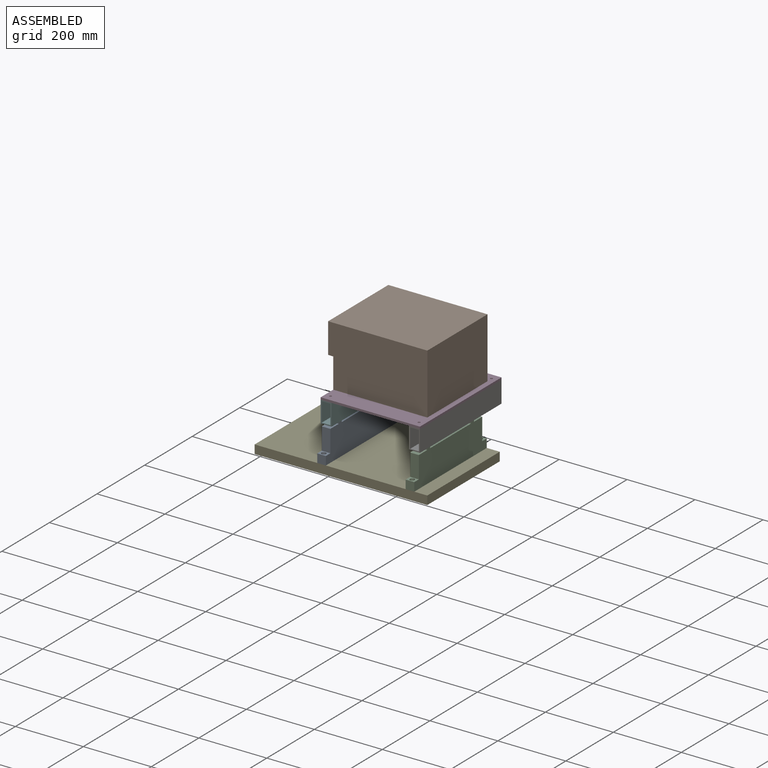
[diagram: assembled view]
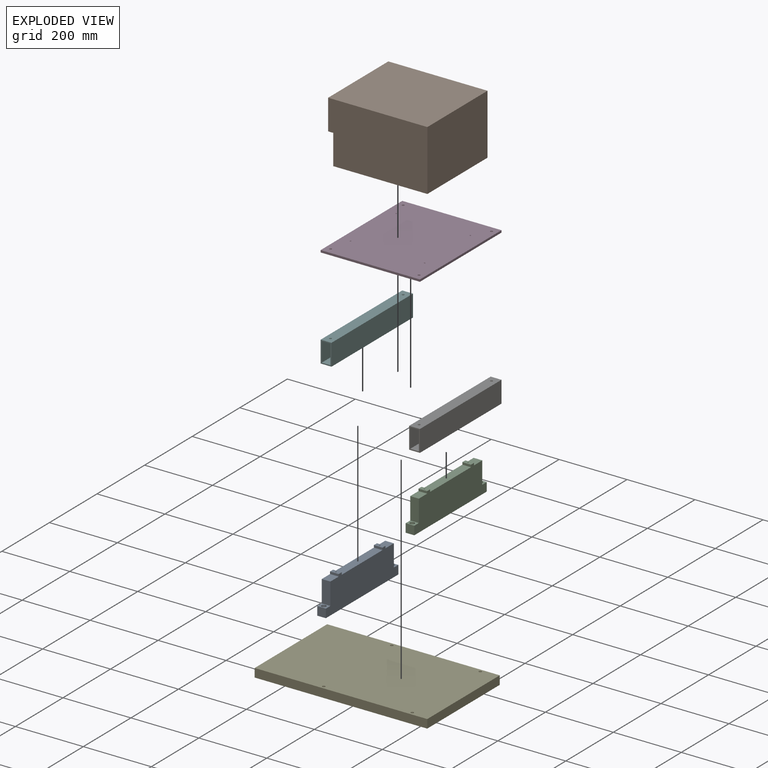
[diagram: exploded view]
GUIDED TOUR — MATED ASSEMBLY (Onshape document 7dd33d00892beebd2c6f414e, AutoMate assembly 7dd33d00892beebd2c6f414e_c214f4509503139859680bf2_5ff66dabe792dec4375b28dd_default)

This assembly has 7 components, labeled P0..P6 below (a component is one placed occurrence of a part; the same part can appear more than once), held together by 19 mates. A mate is a constraint between two components; its type names the relative motion it leaves free:
  CYLINDRICAL — leaves both rotation about and translation along the listed axis free,
  PLANAR — leaves sliding in the plane through the listed point (normal = the listed direction) and rotation about that normal free.
Axis/direction vectors are unit vectors and 'through' points are millimeter coordinates, both in the assembly's world frame.

MATES
  1. CYLINDRICAL "Cylindrical 4": P2 <-> P4, axis (0.000, 0.000, 1.000) through (-16.87, -250.00, 259.79) mm
  2. CYLINDRICAL "Cylindrical 12": P3 <-> P5, axis (0.000, 0.000, -1.000) through (-277.22, 83.37, 394.72) mm
  3. CYLINDRICAL "Cylindrical 3": P2 <-> P4, axis (0.000, 0.000, 1.000) through (-16.87, 35.75, 259.79) mm
  4. CYLINDRICAL "Cylindrical 7": P2 <-> P6, axis (0.000, 0.000, 1.000) through (-16.87, -199.20, 331.22) mm
  5. CYLINDRICAL "Cylindrical 1": P4 <-> P0, axis (0.000, 0.000, -1.000) through (-277.22, -250.00, 221.69) mm
  6. PLANAR "Planar 1": P0 <-> P4, direction (0.000, 0.000, -1.000) through (-277.22, -107.08, 234.39) mm
  7. CYLINDRICAL "Cylindrical 5": P5 <-> P0, axis (0.000, 0.000, -1.000) through (-277.22, -15.05, 331.22) mm
  8. CYLINDRICAL "Cylindrical 10": P5 <-> P3, axis (0.000, 0.000, 1.000) through (-277.22, -221.43, 394.72) mm
  9. PLANAR "Planar 5": P3 <-> P5, direction (0.000, 0.000, -1.000) through (-0.99, -69.03, 394.72) mm
  10. PLANAR "Planar 7": P3 <-> P5, direction (0.000, 0.000, -1.000) through (-147.03, -69.04, 394.72) mm
  11. CYLINDRICAL "Cylindrical 11": P1 <-> P3, axis (0.000, 0.000, -1.000) through (-263.60, -157.12, 401.07) mm
  12. CYLINDRICAL "Cylindrical 6": P5 <-> P0, axis (0.000, 0.000, -1.000) through (-277.22, -199.20, 331.22) mm
  13. PLANAR "Planar 3": P5 <-> P0, direction (0.000, 0.000, -1.000) through (-277.22, -68.95, 331.22) mm
  14. CYLINDRICAL "Cylindrical 8": P6 <-> P2, axis (0.000, 0.000, -1.000) through (-16.87, -15.05, 331.22) mm
  15. PLANAR "Planar 6": P1 <-> P3, direction (0.000, 0.000, -1.000) through (-154.59, -61.12, 401.07) mm
  16. PLANAR "Planar 4": P6 <-> P2, direction (0.000, 0.000, -1.000) through (-16.87, -68.95, 331.22) mm
  17. PLANAR "Planar 2": P2 <-> P4, direction (0.000, 0.000, -1.000) through (-16.87, -107.08, 234.39) mm
  18. CYLINDRICAL "Cylindrical 9": P1 <-> P3, axis (0.000, 0.000, -1.000) through (-263.60, 34.88, 401.07) mm
  19. CYLINDRICAL "Cylindrical 2": P4 <-> P0, axis (0.000, 0.000, 1.000) through (-277.22, 35.75, 234.39) mm

ASSEMBLY ORDER
  1. P6 — the base component [order verified]
  2. P5 [order verified]
  3. P3 [order verified]
  4. P2 [order verified]
  5. P0 [order verified]
  6. P1 [order verified]
  7. P4 [order verified]
Order-tag legend:
  [order verified] — this step's position reverses a verified removal order: the component was checked to insert without passing through the ones already placed.

Of the 7 components, 7 carry the full construction recipe — the FeatureScript program that regenerates the part's solid from scratch; the rest are supplied as boundary geometry only.
Each toured component is shown spotlighted twice — in the assembled view, then in the exploded view, where a leader line traces a displaced component back to its assembled socket (saturated green if recipe-attached, orange if geometry-only; every other component desaturated gray) — followed by its recipe or geometry summary and the mates that hold it.
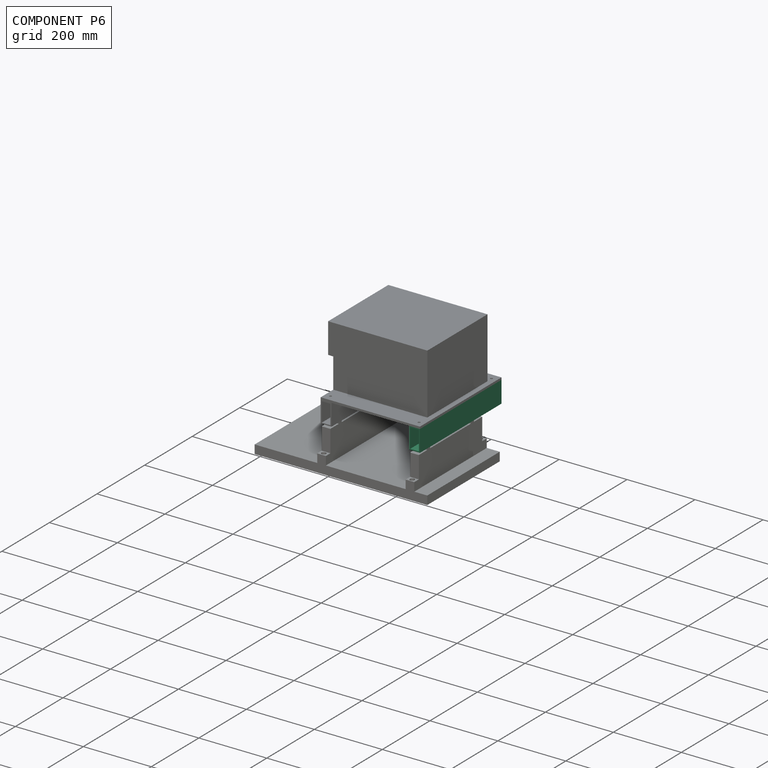
[diagram: component P6 — assembled]
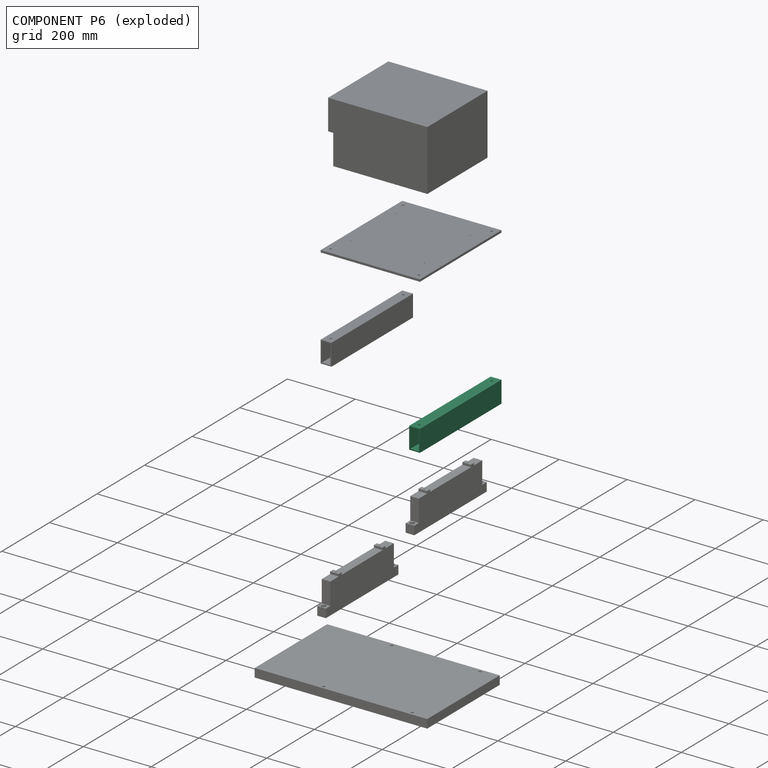
[diagram: component P6 — exploded]
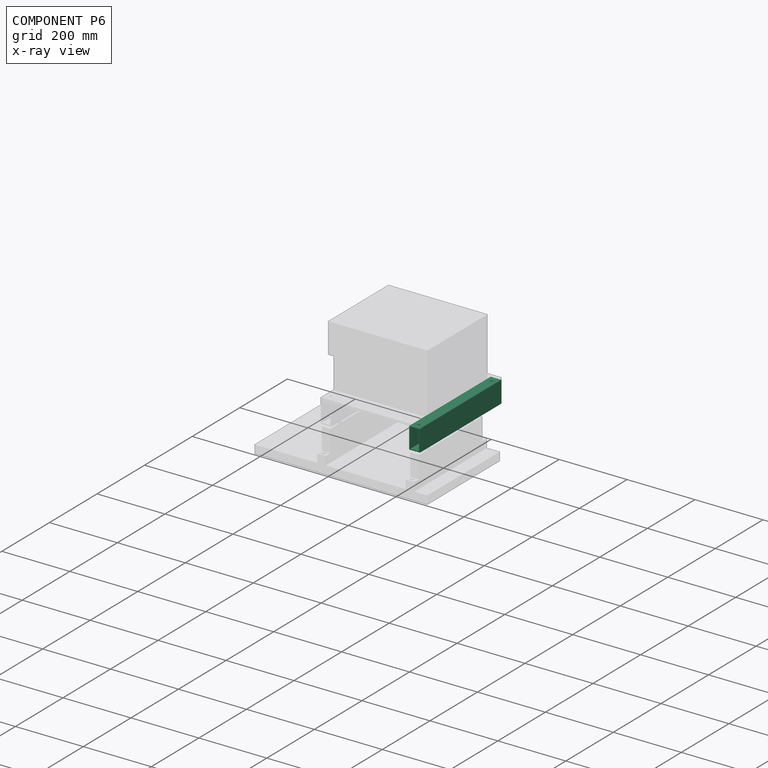
[diagram: component P6 — x-ray view]
COMPONENT P6 — same part as P5 (CADFS 00154562); its construction recipe is shown at P5.
Held by: CYLINDRICAL mate "Cylindrical 7" to P2; CYLINDRICAL mate "Cylindrical 8" to P2; PLANAR mate "Planar 4" to P2.
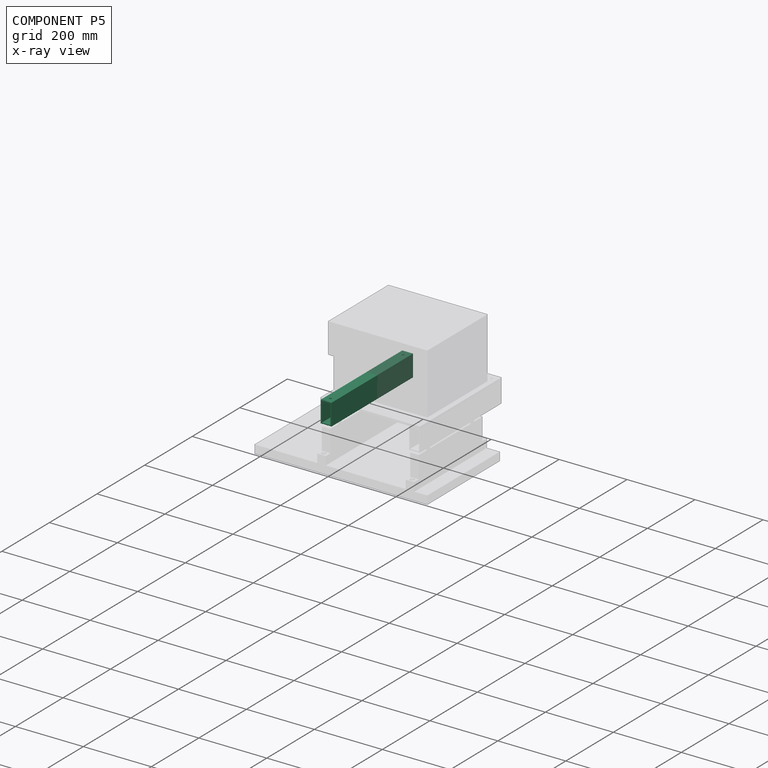
[diagram: component P5 — x-ray view]
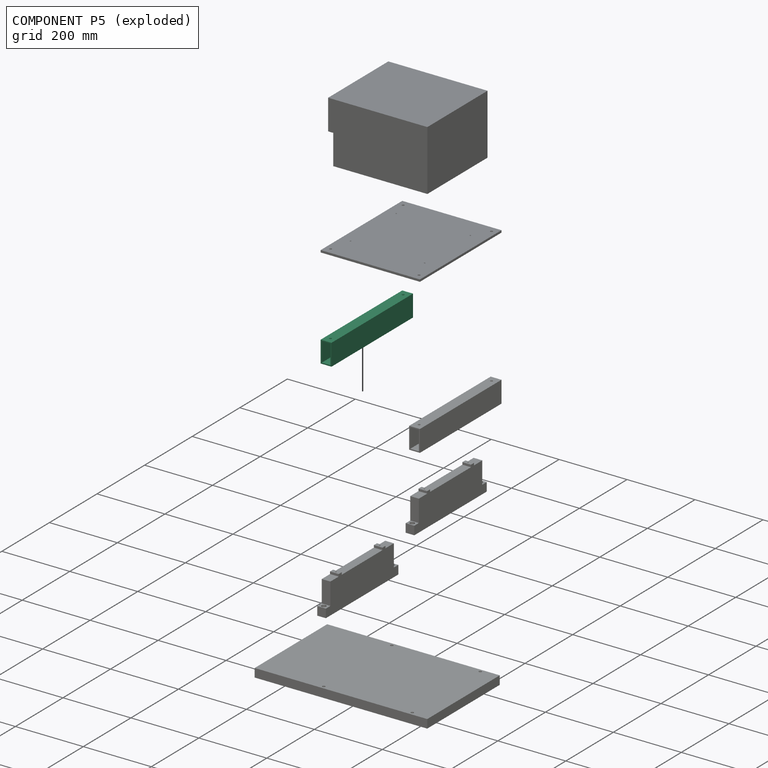
[diagram: component P5 — exploded]
COMPONENT P5 — recipe-attached (CADFS 00154562, mesh-verified: the recipe's output STEP matches this component's geometry to below the mesh-comparison resolution (tessellation chordal tolerance ~0.525 mm)).
Held by: CYLINDRICAL mate "Cylindrical 12" to P3; CYLINDRICAL mate "Cylindrical 5" to P0; CYLINDRICAL mate "Cylindrical 10" to P3; PLANAR mate "Planar 5" to P3; PLANAR mate "Planar 7" to P3; CYLINDRICAL mate "Cylindrical 6" to P0; PLANAR mate "Planar 3" to P0.
Construction recipe (FeatureScript — the CAD program that rebuilds this solid; sketch coordinates are in the units given by the * unit suffixes, e.g. mm):

FeatureScript 1511;
import(path : "onshape/std/geometry.fs", version : "1511.0");
import(path : "onshape/std/common.fs", version : "1511.0");
const mm = millimeter;
const VERTEX = EntityType.VERTEX;
const EDGE = EntityType.EDGE;
const FACE = EntityType.FACE;
const BODY = EntityType.BODY;
function v(x, y){return vector(x, y);}
function OD(order){return orderDisambiguation(order);}
function OSD(set){return originalSetDisambiguation(set);}
function TD(topology){return topologyDisambiguation(topology);}
function TDD(query){return trueDependencyDisambiguation(query);}
function sQuery(a, b, c) {return sketchEntityQuery(a, b, c);}

annotation { "Feature Type Name" : "Feature", "Feature Type Description" : "" }
export const myFeature = defineFeature(function(context is Context, id is Id, definition is map)
    precondition{}
    {
        {
            var Q0;
            Q0=qCreatedBy(makeId("Right.planeOp"),FACE);
            var sketch = newSketch(context, id + "F0", { "sketchPlane" : qUnion([Q0])});
            skLineSegment(sketch, "E0.bottom", {"start": v(-15.87, 31.75) * mm, "end": v(15.88, 31.75) * mm});
            skLineSegment(sketch, "E0.top", {"start": v(-15.88, -31.75) * mm, "end": v(15.88, -31.75) * mm});
            skLineSegment(sketch, "E0.left", {"start": v(-15.87, 31.75) * mm, "end": v(-15.88, -31.75) * mm});
            skLineSegment(sketch, "E0.right", {"start": v(15.88, 31.75) * mm, "end": v(15.87, -31.75) * mm});
            skLineSegment(sketch, "E1.bottom", {"start": v(-12.7, 28.58) * mm, "end": v(12.7, 28.58) * mm});
            skLineSegment(sketch, "E1.top", {"start": v(-12.7, -28.58) * mm, "end": v(12.7, -28.58) * mm});
            skLineSegment(sketch, "E1.left", {"start": v(-12.7, 28.58) * mm, "end": v(-12.7, -28.58) * mm});
            skLineSegment(sketch, "E1.right", {"start": v(12.7, 28.58) * mm, "end": v(12.7, -28.58) * mm});
            skLineSegment(sketch, "E2", {"start": v(-12.7, 28.58) * mm, "end": v(12.7, -28.57) * mm, "construction": true});
            skSolve(sketch);
        }
        {
            var Q0;
            Q0=makeQuery(id+"F0.imprint","IMPRINT",FACE,{"disambiguationData":[TD([[makeQuery(id+"F0.imprint","IMPRINT",EDGE,{"derivedFrom":sQuery(id+"F0.wireOp",EDGE,"E0.bottom")}),-1.0]])]});
            extrude(context, id + "F1", {"entities" : qUnion([Q0]), "depth" : 342.9 * mm});
        }
        {
            var Q0;
            Q0=makeQuery(id+"F1.opExtrude","SWEPT_FACE",FACE,{"disambiguationData":[OSD([sQuery(id+"F0.wireOp",EDGE,"E0.top")])]});
            var sketch = newSketch(context, id + "F2", { "sketchPlane" : qUnion([Q0])});
            skLineSegment(sketch, "E3", {"start": v(0, 0) * mm, "end": v(342.9, 0) * mm, "construction": true});
            skLineSegment(sketch, "E4", {"start": v(117.48, 15.88) * mm, "end": v(117.48, -15.87) * mm, "construction": true});
            skLineSegment(sketch, "E5", {"start": v(301.63, 15.88) * mm, "end": v(301.63, -15.87) * mm, "construction": true});
            skCircle(sketch, "E6", {"center": v(117.48, 0) * mm, "radius": 1.9 * mm});
            skCircle(sketch, "E7", {"center": v(301.63, 0) * mm, "radius": 1.9 * mm});
            skSolve(sketch);
        }
        {
            var Q0;
            Q0=makeQuery(id+"F2.imprint","IMPRINT",FACE,{"disambiguationData":[TD([[makeQuery(id+"F2.imprint","IMPRINT",EDGE,{"derivedFrom":sQuery(id+"F2.wireOp",EDGE,"E6")}),1.0]])]});
            var Q1;
            Q1=makeQuery(id+"F2.imprint","IMPRINT",FACE,{"disambiguationData":[TD([[makeQuery(id+"F2.imprint","IMPRINT",EDGE,{"derivedFrom":sQuery(id+"F2.wireOp",EDGE,"E7")}),1.0]])]});
            extrude(context, id + "F3", {"entities" : qUnion([Q0, Q1]), "operationType" : NewBodyOperationType.REMOVE, "endBound" : BoundingType.UP_TO_NEXT, "oppositeDirection" : true, "depth" : 25.4 * mm});
        }
        {
            var Q0;
            Q0=makeQuery(id+"F1.opExtrude","SWEPT_FACE",FACE,{"disambiguationData":[OSD([sQuery(id+"F0.wireOp",EDGE,"E0.bottom")])]});
            var sketch = newSketch(context, id + "F4", { "sketchPlane" : qUnion([Q0])});
            skLineSegment(sketch, "E8", {"start": v(0, 0) * mm, "end": v(342.9, 0) * mm, "construction": true});
            skLineSegment(sketch, "E9", {"start": v(19.05, 15.88) * mm, "end": v(19.05, -15.87) * mm, "construction": true});
            skLineSegment(sketch, "E10", {"start": v(323.85, 15.88) * mm, "end": v(323.85, -15.87) * mm, "construction": true});
            skCircle(sketch, "E11", {"center": v(19.05, 0) * mm, "radius": 3.38 * mm});
            skCircle(sketch, "E12", {"center": v(323.85, 0) * mm, "radius": 3.38 * mm});
            skSolve(sketch);
        }
        {
            var Q0;
            Q0=makeQuery(id+"F4.imprint","IMPRINT",FACE,{"disambiguationData":[TD([[makeQuery(id+"F4.imprint","IMPRINT",EDGE,{"derivedFrom":sQuery(id+"F4.wireOp",EDGE,"E11")}),1.0]])]});
            var Q1;
            Q1=makeQuery(id+"F4.imprint","IMPRINT",FACE,{"disambiguationData":[TD([[makeQuery(id+"F4.imprint","IMPRINT",EDGE,{"derivedFrom":sQuery(id+"F4.wireOp",EDGE,"E12")}),1.0]])]});
            extrude(context, id + "F5", {"entities" : qUnion([Q0, Q1]), "operationType" : NewBodyOperationType.REMOVE, "endBound" : BoundingType.UP_TO_NEXT, "oppositeDirection" : true, "depth" : 25.4 * mm});
        }
    });
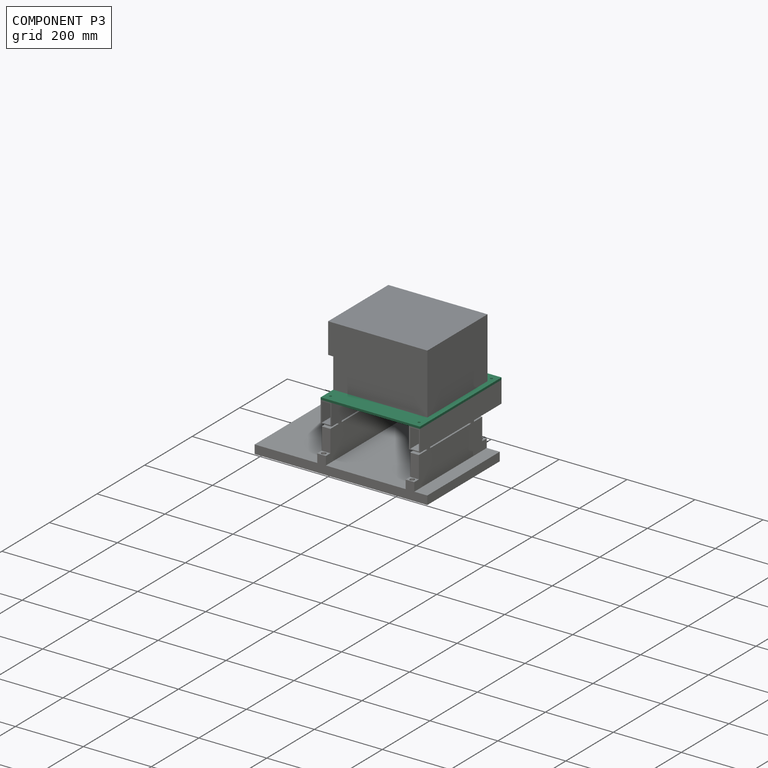
[diagram: component P3 — assembled]
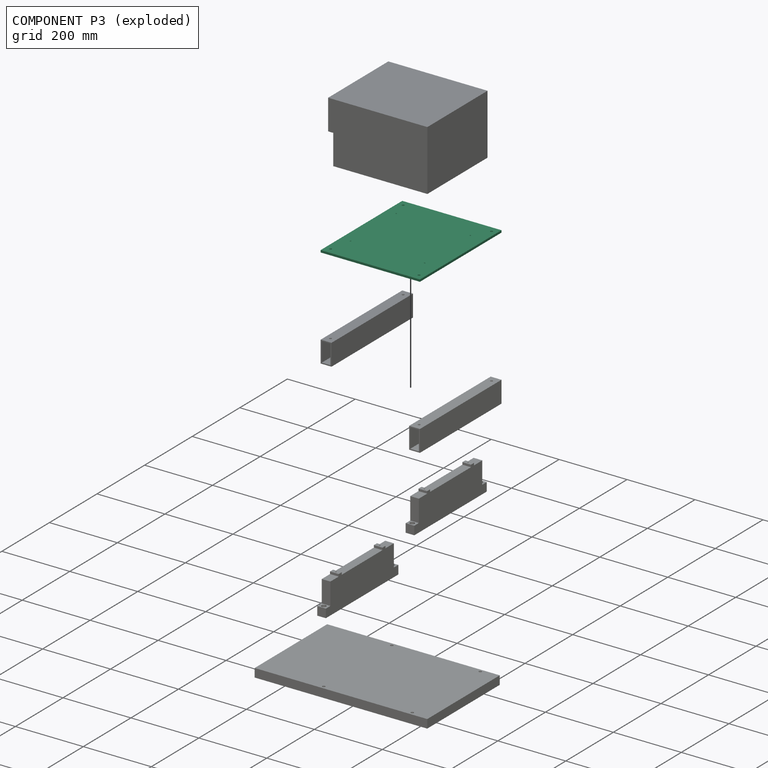
[diagram: component P3 — exploded]
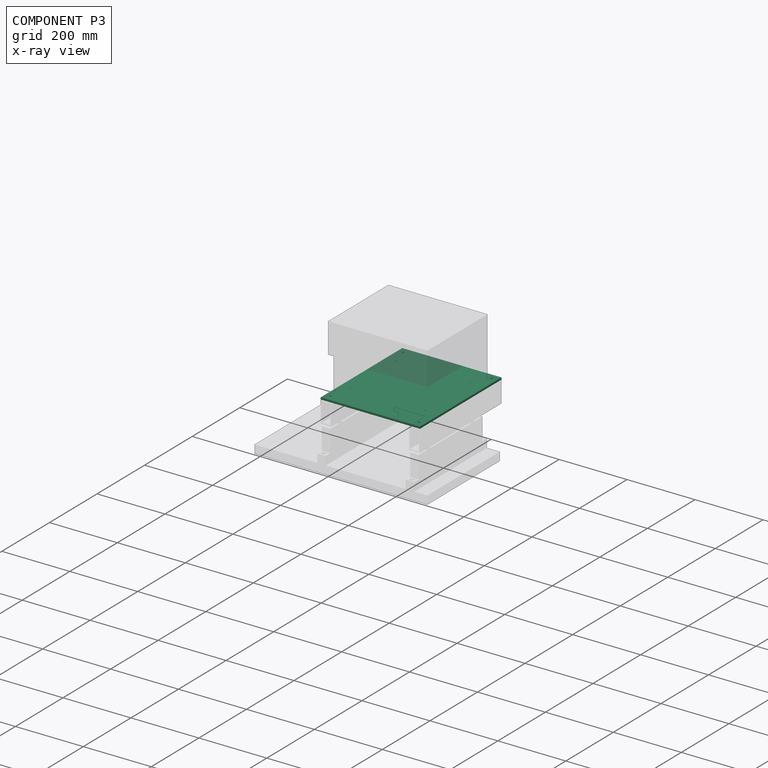
[diagram: component P3 — x-ray view]
COMPONENT P3 — recipe-attached (CADFS 00154571, mesh-verified: the recipe's output STEP matches this component's geometry to below the mesh-comparison resolution (tessellation chordal tolerance ~0.676 mm)).
Held by: CYLINDRICAL mate "Cylindrical 12" to P5; CYLINDRICAL mate "Cylindrical 10" to P5; PLANAR mate "Planar 5" to P5; PLANAR mate "Planar 7" to P5; CYLINDRICAL mate "Cylindrical 11" to P1; PLANAR mate "Planar 6" to P1; CYLINDRICAL mate "Cylindrical 9" to P1.
Construction recipe (FeatureScript — the CAD program that rebuilds this solid; sketch coordinates are in the units given by the * unit suffixes, e.g. mm):

FeatureScript 1511;
import(path : "onshape/std/geometry.fs", version : "1511.0");
import(path : "onshape/std/common.fs", version : "1511.0");
const mm = millimeter;
const VERTEX = EntityType.VERTEX;
const EDGE = EntityType.EDGE;
const FACE = EntityType.FACE;
const BODY = EntityType.BODY;
function v(x, y){return vector(x, y);}
function OD(order){return orderDisambiguation(order);}
function OSD(set){return originalSetDisambiguation(set);}
function TD(topology){return topologyDisambiguation(topology);}
function TDD(query){return trueDependencyDisambiguation(query);}
function sQuery(a, b, c) {return sketchEntityQuery(a, b, c);}

annotation { "Feature Type Name" : "Feature", "Feature Type Description" : "" }
export const myFeature = defineFeature(function(context is Context, id is Id, definition is map)
    precondition{}
    {
        {
            var Q0;
            Q0=qCreatedBy(makeId("Top.planeOp"),FACE);
            var sketch = newSketch(context, id + "F0", { "sketchPlane" : qUnion([Q0])});
            skLineSegment(sketch, "E0.bottom", {"start": v(-171.45, 146.05) * mm, "end": v(171.45, 146.05) * mm});
            skLineSegment(sketch, "E0.top", {"start": v(-171.45, -146.05) * mm, "end": v(171.45, -146.05) * mm});
            skLineSegment(sketch, "E0.left", {"start": v(-171.45, 146.05) * mm, "end": v(-171.45, -146.05) * mm});
            skLineSegment(sketch, "E0.right", {"start": v(171.45, 146.05) * mm, "end": v(171.45, -146.05) * mm});
            skLineSegment(sketch, "E1", {"start": v(-171.45, 146.05) * mm, "end": v(171.45, -146.05) * mm, "construction": true});
            skSolve(sketch);
        }
        {
            var Q0;
            Q0=makeQuery(id+"F0.imprint","IMPRINT",FACE,{"disambiguationData":[TD([[makeQuery(id+"F0.imprint","IMPRINT",EDGE,{"derivedFrom":sQuery(id+"F0.wireOp",EDGE,"E0.bottom")}),-1.0]])]});
            extrude(context, id + "F1", {"entities" : qUnion([Q0]), "depth" : 6.35 * mm});
        }
        {
            var Q0;
            Q0=makeQuery(id+"F1.opExtrude","CAP_FACE",FACE,{"disambiguationData":[OSD([sQuery(id+"F0.wireOp",EDGE,"E0.bottom"),sQuery(id+"F0.wireOp",EDGE,"E0.top"),sQuery(id+"F0.wireOp",EDGE,"E0.left"),sQuery(id+"F0.wireOp",EDGE,"E0.right")])],"isStart":false});
            var sketch = newSketch(context, id + "F2", { "sketchPlane" : qUnion([Q0])});
            skLineSegment(sketch, "E2", {"start": v(-152.4, 146.05) * mm, "end": v(-152.4, -146.05) * mm, "construction": true});
            skLineSegment(sketch, "E3", {"start": v(152.4, 146.05) * mm, "end": v(152.4, -146.05) * mm, "construction": true});
            skLineSegment(sketch, "E4", {"start": v(171.45, 130.17) * mm, "end": v(-171.45, 130.17) * mm, "construction": true});
            skLineSegment(sketch, "E5", {"start": v(171.45, -130.18) * mm, "end": v(-171.45, -130.18) * mm, "construction": true});
            skCircle(sketch, "E6", {"center": v(-152.4, 130.17) * mm, "radius": 3.38 * mm});
            skCircle(sketch, "E7", {"center": v(152.4, 130.18) * mm, "radius": 3.38 * mm});
            skCircle(sketch, "E8", {"center": v(-152.4, -130.18) * mm, "radius": 3.38 * mm});
            skCircle(sketch, "E9", {"center": v(152.4, -130.18) * mm, "radius": 3.38 * mm});
            skSolve(sketch);
        }
        {
            var Q0;
            Q0=makeQuery(id+"F2.imprint","IMPRINT",FACE,{"disambiguationData":[TD([[makeQuery(id+"F2.imprint","IMPRINT",EDGE,{"derivedFrom":sQuery(id+"F2.wireOp",EDGE,"E6")}),1.0]])]});
            var Q1;
            Q1=makeQuery(id+"F2.imprint","IMPRINT",FACE,{"disambiguationData":[TD([[makeQuery(id+"F2.imprint","IMPRINT",EDGE,{"derivedFrom":sQuery(id+"F2.wireOp",EDGE,"E7")}),1.0]])]});
            var Q2;
            Q2=makeQuery(id+"F2.imprint","IMPRINT",FACE,{"disambiguationData":[TD([[makeQuery(id+"F2.imprint","IMPRINT",EDGE,{"derivedFrom":sQuery(id+"F2.wireOp",EDGE,"E9")}),1.0]])]});
            var Q3;
            Q3=makeQuery(id+"F2.imprint","IMPRINT",FACE,{"disambiguationData":[TD([[makeQuery(id+"F2.imprint","IMPRINT",EDGE,{"derivedFrom":sQuery(id+"F2.wireOp",EDGE,"E8")}),1.0]])]});
            extrude(context, id + "F3", {"entities" : qUnion([Q0, Q1, Q2, Q3]), "operationType" : NewBodyOperationType.REMOVE, "endBound" : BoundingType.THROUGH_ALL, "oppositeDirection" : true, "depth" : 25.4 * mm});
        }
        {
            var Q0;
            Q0=makeQuery(id+"F1.opExtrude","CAP_FACE",FACE,{"disambiguationData":[OSD([sQuery(id+"F0.wireOp",EDGE,"E0.bottom"),sQuery(id+"F0.wireOp",EDGE,"E0.top"),sQuery(id+"F0.wireOp",EDGE,"E0.left"),sQuery(id+"F0.wireOp",EDGE,"E0.right")])],"isStart":true});
            var sketch = newSketch(context, id + "F4", { "sketchPlane" : qUnion([Q0])});
            skLineSegment(sketch, "E10", {"start": v(-171.45, 116.56) * mm, "end": v(171.45, 116.56) * mm, "construction": true});
            skLineSegment(sketch, "E11", {"start": v(-171.45, -101.45) * mm, "end": v(171.45, -101.45) * mm, "construction": true});
            skLineSegment(sketch, "E12", {"start": v(-103.91, 146.05) * mm, "end": v(-103.91, -146.05) * mm, "construction": true});
            skLineSegment(sketch, "E13", {"start": v(88.09, 146.05) * mm, "end": v(88.09, -146.05) * mm, "construction": true});
            skPoint(sketch, "E14", {"position": v(-103.91, 116.56) * mm});
            skPoint(sketch, "E15", {"position": v(88.09, 116.56) * mm});
            skPoint(sketch, "E16", {"position": v(88.09, -101.45) * mm});
            skPoint(sketch, "E17", {"position": v(-103.91, -101.45) * mm});
            skSolve(sketch);
        }
        {
            var Q0;
            Q0=sQuery(id+"F4.wireOp",VERTEX,"E14");
            var Q1;
            Q1=sQuery(id+"F4.wireOp",VERTEX,"E15");
            var Q2;
            Q2=sQuery(id+"F4.wireOp",VERTEX,"E16");
            var Q3;
            Q3=sQuery(id+"F4.wireOp",VERTEX,"E17");
            var Q4;
            Q4=makeQuery(id+"F1.opExtrude","SWEPT_BODY",BODY,{"disambiguationData":[OSD([sQuery(id+"F0.wireOp",EDGE,"E0.bottom"),sQuery(id+"F0.wireOp",EDGE,"E0.top"),sQuery(id+"F0.wireOp",EDGE,"E0.left"),sQuery(id+"F0.wireOp",EDGE,"E0.right")])]});
            hole(context, id + "F5", {"style" : HoleStyle.C_SINK, "endStyle" : HoleEndStyle.THROUGH, "standardTappedOrClearance" : lookupTablePath({ "standard" : "ANSI", "fit" : "Normal (ASME)", "size" : "#6", "type" : "Clearance" }), "standardBlindInLast" : lookupTablePath({ "fit" : "Free", "standard" : "ANSI", "size" : "#6", "type" : "Clearance" }), "holeDiameter" : 3.8 * mm, "cSinkDiameter" : 7.8 * mm, "cSinkAngle" : 82 * degree, "locations" : qUnion([Q0, Q1, Q2, Q3]), "scope" : qUnion([Q4]), "isTappedThrough" : true});
        }
    });
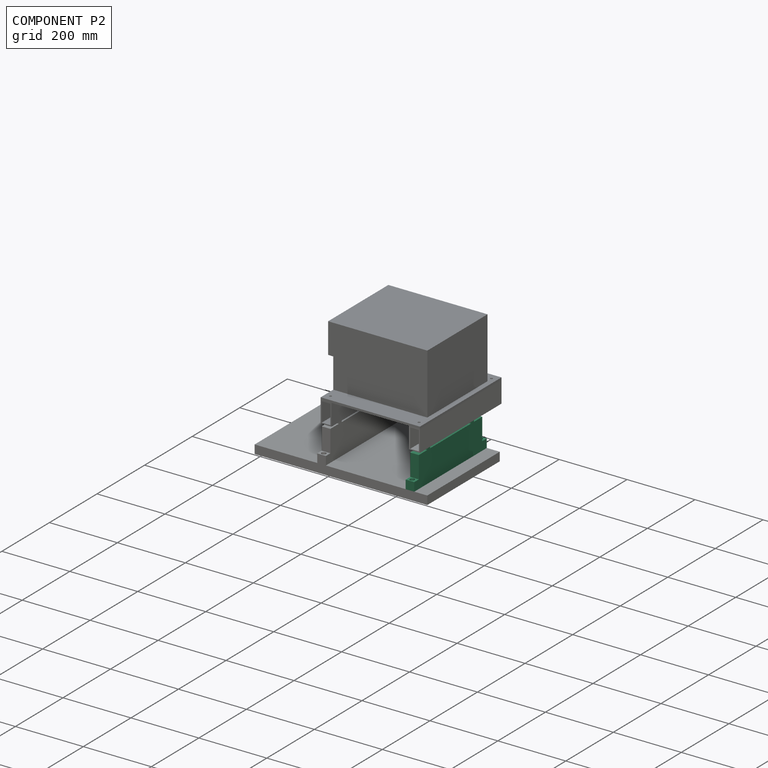
[diagram: component P2 — assembled]
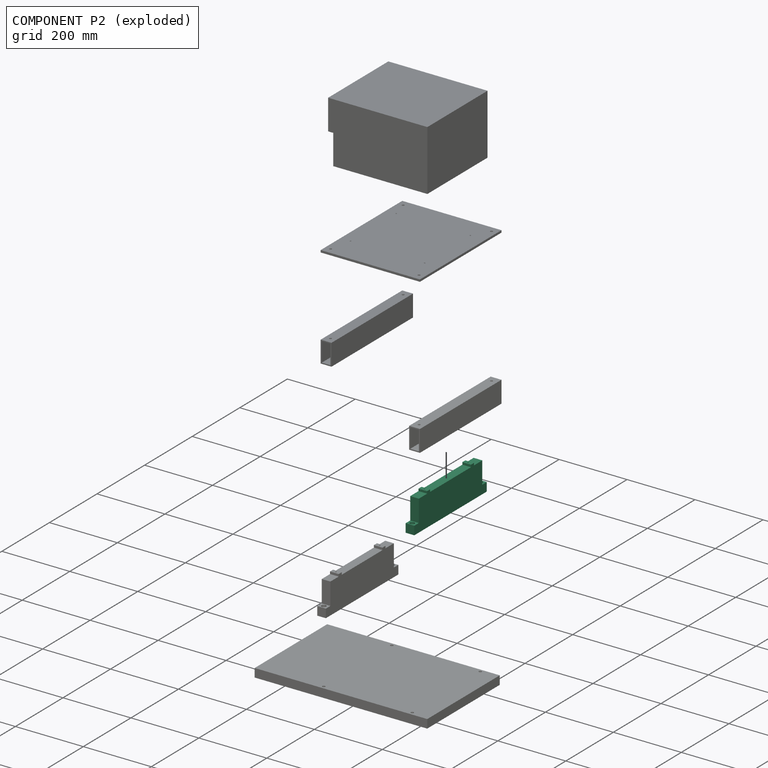
[diagram: component P2 — exploded]
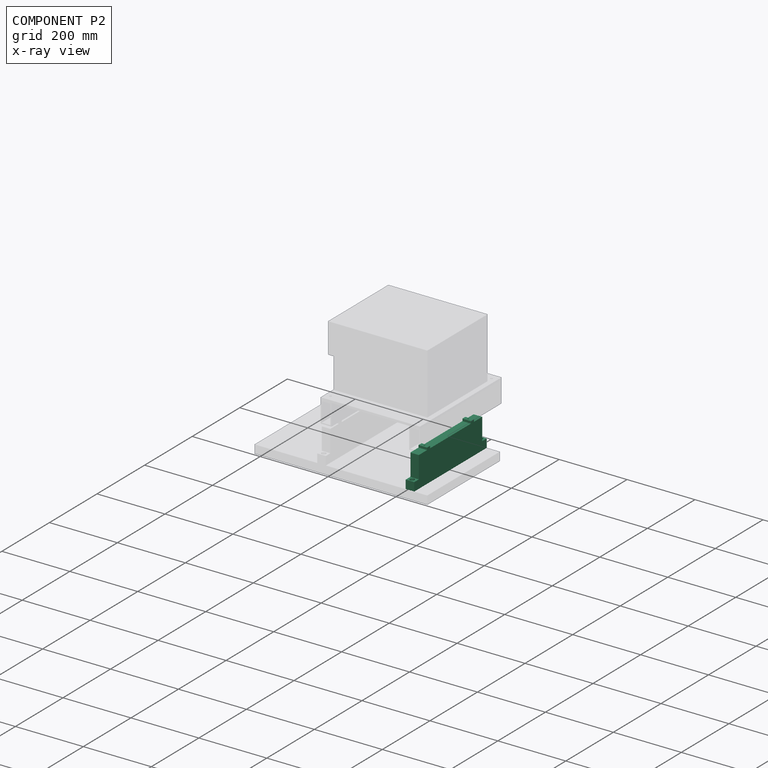
[diagram: component P2 — x-ray view]
COMPONENT P2 — same part as P0 (CADFS 00154284); its construction recipe is shown at P0.
Held by: CYLINDRICAL mate "Cylindrical 4" to P4; CYLINDRICAL mate "Cylindrical 3" to P4; CYLINDRICAL mate "Cylindrical 7" to P6; CYLINDRICAL mate "Cylindrical 8" to P6; PLANAR mate "Planar 4" to P6; PLANAR mate "Planar 2" to P4.
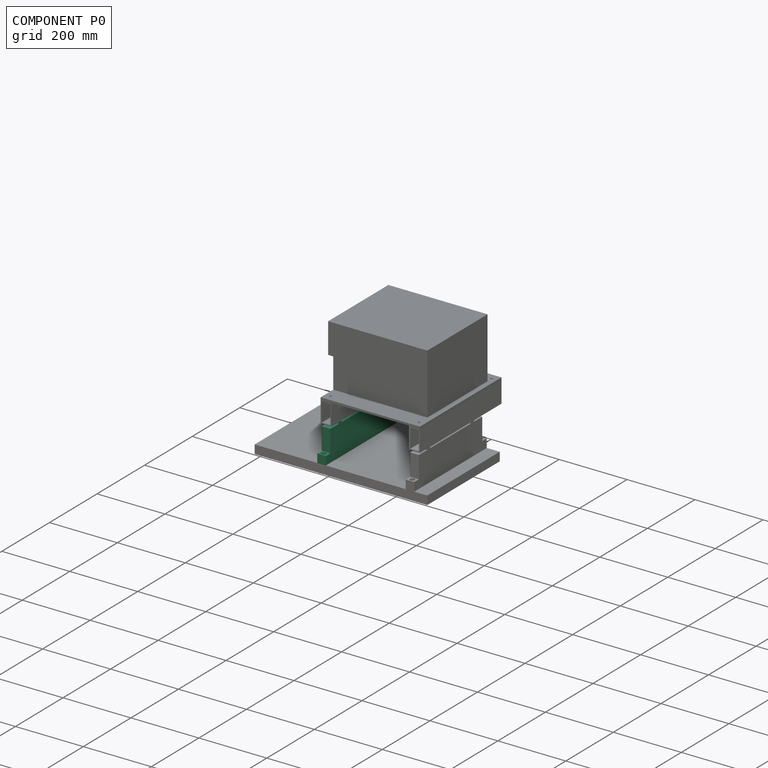
[diagram: component P0 — assembled]
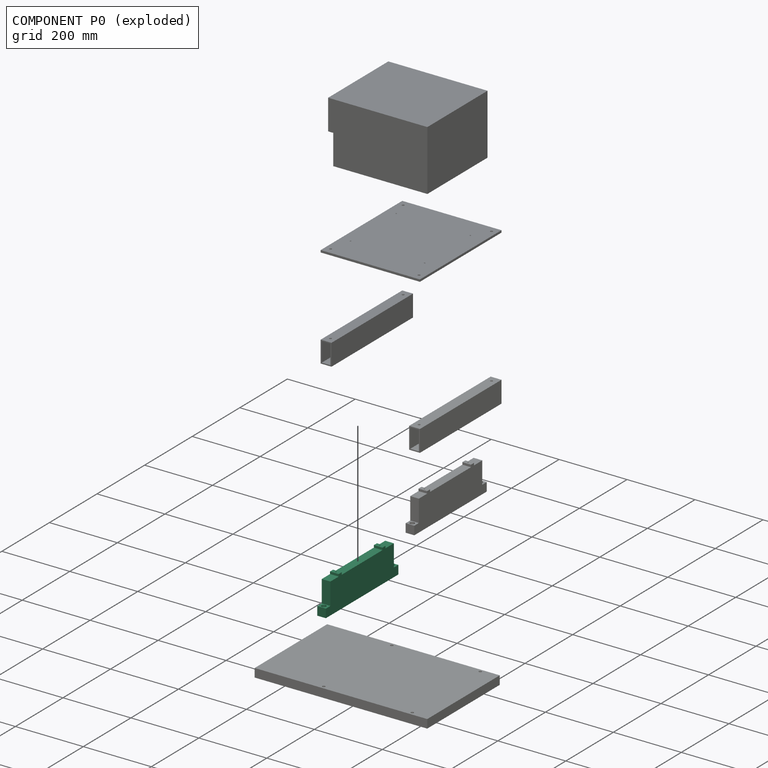
[diagram: component P0 — exploded]
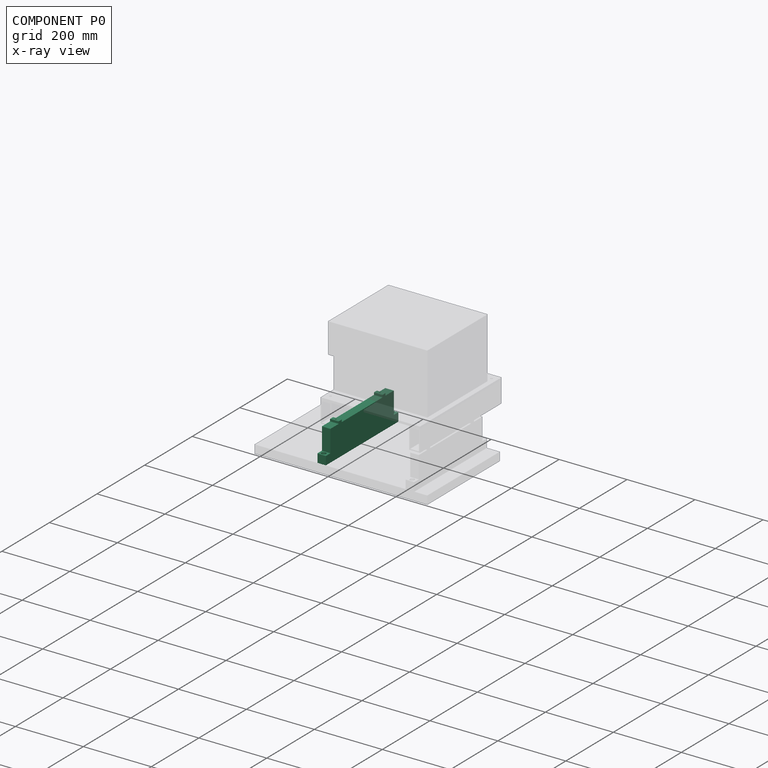
[diagram: component P0 — x-ray view]
COMPONENT P0 — recipe-attached (CADFS 00154284, mesh-verified: the recipe's output STEP matches this component's geometry to below the mesh-comparison resolution (tessellation chordal tolerance ~0.481 mm)).
Held by: CYLINDRICAL mate "Cylindrical 1" to P4; PLANAR mate "Planar 1" to P4; CYLINDRICAL mate "Cylindrical 5" to P5; CYLINDRICAL mate "Cylindrical 6" to P5; PLANAR mate "Planar 3" to P5; CYLINDRICAL mate "Cylindrical 2" to P4.
Construction recipe (FeatureScript — the CAD program that rebuilds this solid; sketch coordinates are in the units given by the * unit suffixes, e.g. mm):

FeatureScript 1511;
import(path : "onshape/std/geometry.fs", version : "1511.0");
import(path : "onshape/std/common.fs", version : "1511.0");
const mm = millimeter;
const VERTEX = EntityType.VERTEX;
const EDGE = EntityType.EDGE;
const FACE = EntityType.FACE;
const BODY = EntityType.BODY;
function v(x, y){return vector(x, y);}
function OD(order){return orderDisambiguation(order);}
function OSD(set){return originalSetDisambiguation(set);}
function TD(topology){return topologyDisambiguation(topology);}
function TDD(query){return trueDependencyDisambiguation(query);}
function sQuery(a, b, c) {return sketchEntityQuery(a, b, c);}

annotation { "Feature Type Name" : "Feature", "Feature Type Description" : "" }
export const myFeature = defineFeature(function(context is Context, id is Id, definition is map)
    precondition{}
    {
        {
            var Q0;
            Q0=qCreatedBy(makeId("Top.planeOp"),FACE);
            var sketch = newSketch(context, id + "F0", { "sketchPlane" : qUnion([Q0])});
            skLineSegment(sketch, "E0.bottom", {"start": v(-152.4, 12.7) * mm, "end": v(152.4, 12.7) * mm});
            skLineSegment(sketch, "E0.top", {"start": v(-152.4, -12.7) * mm, "end": v(152.4, -12.7) * mm});
            skLineSegment(sketch, "E0.left", {"start": v(-152.4, 12.7) * mm, "end": v(-152.4, -12.7) * mm});
            skLineSegment(sketch, "E0.right", {"start": v(152.4, 12.7) * mm, "end": v(152.4, -12.7) * mm});
            skLineSegment(sketch, "E1", {"start": v(-152.4, 12.7) * mm, "end": v(152.4, -12.7) * mm, "construction": true});
            skSolve(sketch);
        }
        {
            var Q0;
            Q0=makeQuery(id+"F0.imprint","IMPRINT",FACE,{"disambiguationData":[TD([[makeQuery(id+"F0.imprint","IMPRINT",EDGE,{"derivedFrom":sQuery(id+"F0.wireOp",EDGE,"E0.bottom")}),-1.0]])]});
            extrude(context, id + "F1", {"entities" : qUnion([Q0]), "depth" : 96.82 * mm});
        }
        {
            var Q0;
            Q0=makeQuery(id+"F1.opExtrude","CAP_FACE",FACE,{"disambiguationData":[OSD([sQuery(id+"F0.wireOp",EDGE,"E0.bottom"),sQuery(id+"F0.wireOp",EDGE,"E0.top"),sQuery(id+"F0.wireOp",EDGE,"E0.left"),sQuery(id+"F0.wireOp",EDGE,"E0.right")])],"isStart":false});
            var sketch = newSketch(context, id + "F2", { "sketchPlane" : qUnion([Q0])});
            skLineSegment(sketch, "E2.bottom", {"start": v(-152.4, 12.7) * mm, "end": v(-133.35, 12.7) * mm});
            skLineSegment(sketch, "E2.top", {"start": v(-152.4, -12.7) * mm, "end": v(-133.35, -12.7) * mm});
            skLineSegment(sketch, "E2.left", {"start": v(-152.4, 12.7) * mm, "end": v(-152.4, -12.7) * mm});
            skLineSegment(sketch, "E2.right", {"start": v(-133.35, 12.7) * mm, "end": v(-133.35, -12.7) * mm});
            skLineSegment(sketch, "E3.bottom", {"start": v(152.4, 12.7) * mm, "end": v(133.35, 12.7) * mm});
            skLineSegment(sketch, "E3.top", {"start": v(152.4, -12.7) * mm, "end": v(133.35, -12.7) * mm});
            skLineSegment(sketch, "E3.left", {"start": v(152.4, 12.7) * mm, "end": v(152.4, -12.7) * mm});
            skLineSegment(sketch, "E3.right", {"start": v(133.35, 12.7) * mm, "end": v(133.35, -12.7) * mm});
            skSolve(sketch);
        }
        {
            var Q0;
            Q0=makeQuery(id+"F2.imprint","IMPRINT",FACE,{"disambiguationData":[TD([[makeQuery(id+"F2.imprint","IMPRINT",EDGE,{"derivedFrom":sQuery(id+"F2.wireOp",EDGE,"E2.bottom")}),-1.0]])]});
            var Q1;
            Q1=makeQuery(id+"F2.imprint","IMPRINT",FACE,{"disambiguationData":[TD([[makeQuery(id+"F2.imprint","IMPRINT",EDGE,{"derivedFrom":sQuery(id+"F2.wireOp",EDGE,"E3.bottom")}),-1.0]])]});
            extrude(context, id + "F3", {"entities" : qUnion([Q0, Q1]), "operationType" : NewBodyOperationType.REMOVE, "oppositeDirection" : true, "depth" : 71.42 * mm});
        }
        {
            var Q0;
            Q0=makeQuery(id+"F1.opExtrude","CAP_FACE",FACE,{"disambiguationData":[OSD([sQuery(id+"F0.wireOp",EDGE,"E0.bottom"),sQuery(id+"F0.wireOp",EDGE,"E0.top"),sQuery(id+"F0.wireOp",EDGE,"E0.left"),sQuery(id+"F0.wireOp",EDGE,"E0.right")])],"isStart":false});
            var sketch = newSketch(context, id + "F4", { "sketchPlane" : qUnion([Q0])});
            skLineSegment(sketch, "E4.bottom", {"start": v(-133.35, 12.7) * mm, "end": v(-98.43, 12.7) * mm});
            skLineSegment(sketch, "E4.top", {"start": v(-133.35, -12.7) * mm, "end": v(-98.43, -12.7) * mm});
            skLineSegment(sketch, "E4.left", {"start": v(-133.35, 12.7) * mm, "end": v(-133.35, -12.7) * mm});
            skLineSegment(sketch, "E4.right", {"start": v(-98.43, 12.7) * mm, "end": v(-98.43, -12.7) * mm});
            skLineSegment(sketch, "E5.bottom", {"start": v(133.35, 12.7) * mm, "end": v(98.43, 12.7) * mm});
            skLineSegment(sketch, "E5.top", {"start": v(133.35, -12.7) * mm, "end": v(98.43, -12.7) * mm});
            skLineSegment(sketch, "E5.left", {"start": v(133.35, 12.7) * mm, "end": v(133.35, -12.7) * mm});
            skLineSegment(sketch, "E5.right", {"start": v(98.43, 12.7) * mm, "end": v(98.43, -12.7) * mm});
            skLineSegment(sketch, "E6.bottom", {"start": v(-85.73, 12.7) * mm, "end": v(85.73, 12.7) * mm});
            skLineSegment(sketch, "E6.top", {"start": v(-85.73, -12.7) * mm, "end": v(85.73, -12.7) * mm});
            skLineSegment(sketch, "E6.left", {"start": v(-85.73, 12.7) * mm, "end": v(-85.73, -12.7) * mm});
            skLineSegment(sketch, "E6.right", {"start": v(85.73, 12.7) * mm, "end": v(85.73, -12.7) * mm});
            skSolve(sketch);
        }
        {
            var Q0;
            Q0=makeQuery(id+"F4.imprint","IMPRINT",FACE,{"disambiguationData":[TD([[makeQuery(id+"F4.imprint","IMPRINT",EDGE,{"derivedFrom":sQuery(id+"F4.wireOp",EDGE,"E4.bottom")}),-1.0]])]});
            var Q1;
            Q1=makeQuery(id+"F4.imprint","IMPRINT",FACE,{"disambiguationData":[TD([[makeQuery(id+"F4.imprint","IMPRINT",EDGE,{"derivedFrom":sQuery(id+"F4.wireOp",EDGE,"E6.bottom")}),-1.0]])]});
            var Q2;
            Q2=makeQuery(id+"F4.imprint","IMPRINT",FACE,{"disambiguationData":[TD([[makeQuery(id+"F4.imprint","IMPRINT",EDGE,{"derivedFrom":sQuery(id+"F4.wireOp",EDGE,"E5.bottom")}),-1.0]])]});
            extrude(context, id + "F5", {"entities" : qUnion([Q0, Q1, Q2]), "operationType" : NewBodyOperationType.REMOVE, "oppositeDirection" : true, "depth" : 6.65 * mm});
        }
        {
            var Q0;
            Q0=makeQuery(id+"F1.opExtrude","CAP_FACE",FACE,{"disambiguationData":[OSD([sQuery(id+"F0.wireOp",EDGE,"E0.bottom"),sQuery(id+"F0.wireOp",EDGE,"E0.top"),sQuery(id+"F0.wireOp",EDGE,"E0.left"),sQuery(id+"F0.wireOp",EDGE,"E0.right")])],"isStart":true});
            var sketch = newSketch(context, id + "F6", { "sketchPlane" : qUnion([Q0])});
            skLineSegment(sketch, "E7", {"start": v(-152.4, 0) * mm, "end": v(152.4, 0) * mm, "construction": true});
            skLineSegment(sketch, "E8", {"start": v(0, 12.7) * mm, "end": v(0, -12.7) * mm, "construction": true});
            skLineSegment(sketch, "E9", {"start": v(-142.88, 12.7) * mm, "end": v(-142.88, -12.7) * mm, "construction": true});
            skLineSegment(sketch, "E10", {"start": v(-92.08, 12.7) * mm, "end": v(-92.08, -12.7) * mm, "construction": true});
            skLineSegment(sketch, "E11", {"start": v(142.88, 12.7) * mm, "end": v(142.88, -12.7) * mm, "construction": true});
            skLineSegment(sketch, "E12", {"start": v(92.08, 12.7) * mm, "end": v(92.08, -12.7) * mm, "construction": true});
            skCircle(sketch, "E13", {"center": v(-92.08, 0) * mm, "radius": 2.16 * mm});
            skCircle(sketch, "E14", {"center": v(92.08, 0) * mm, "radius": 2.16 * mm});
            skSolve(sketch);
        }
        {
            var Q0;
            Q0=makeQuery(id+"F6.imprint","IMPRINT",FACE,{"disambiguationData":[TD([[makeQuery(id+"F6.imprint","IMPRINT",EDGE,{"derivedFrom":sQuery(id+"F6.wireOp",EDGE,"E13")}),1.0]])]});
            var Q1;
            Q1=makeQuery(id+"F6.imprint","IMPRINT",FACE,{"disambiguationData":[TD([[makeQuery(id+"F6.imprint","IMPRINT",EDGE,{"derivedFrom":sQuery(id+"F6.wireOp",EDGE,"E14")}),1.0]])]});
            extrude(context, id + "F7", {"entities" : qUnion([Q0, Q1]), "operationType" : NewBodyOperationType.REMOVE, "endBound" : BoundingType.THROUGH_ALL, "oppositeDirection" : true, "depth" : 25.4 * mm});
        }
        {
            var Q0;
            Q0=makeQuery(id+"F1.opExtrude","CAP_FACE",FACE,{"disambiguationData":[OSD([sQuery(id+"F0.wireOp",EDGE,"E0.bottom"),sQuery(id+"F0.wireOp",EDGE,"E0.top"),sQuery(id+"F0.wireOp",EDGE,"E0.left"),sQuery(id+"F0.wireOp",EDGE,"E0.right")])],"isStart":true});
            var sketch = newSketch(context, id + "F8", { "sketchPlane" : qUnion([Q0])});
            skCircle(sketch, "E15", {"center": v(-92.08, 0) * mm, "radius": 3.94 * mm});
            skCircle(sketch, "E16", {"center": v(92.08, 0) * mm, "radius": 3.94 * mm});
            skSolve(sketch);
        }
        {
            var Q0;
            Q0 = qSketchRegion(id + "F8", true);
            extrude(context, id + "F9", {"entities" : qUnion([Q0]), "operationType" : NewBodyOperationType.REMOVE, "oppositeDirection" : true, "depth" : 93.98 * mm});
        }
        {
            var Q0;
            Q0=makeQuery(id+"F3.boolean.opBoolean","COPY",FACE,{"derivedFrom":makeQuery(id+"F3.opExtrude","CAP_FACE",FACE,{"disambiguationData":[OSD([sQuery(id+"F2.wireOp",EDGE,"E2.bottom"),sQuery(id+"F2.wireOp",EDGE,"E2.top"),sQuery(id+"F2.wireOp",EDGE,"E2.left"),sQuery(id+"F2.wireOp",EDGE,"E2.right")])],"isStart":false})});
            var sketch = newSketch(context, id + "F10", { "sketchPlane" : qUnion([Q0])});
            skLineSegment(sketch, "E17", {"start": v(-152.4, 0) * mm, "end": v(152.67, 0) * mm, "construction": true});
            skPoint(sketch, "E18.centerSnap0", {"position": v(-142.87, 12.7) * mm});
            skLineSegment(sketch, "E19", {"start": v(142.88, 12.65) * mm, "end": v(142.88, -13.08) * mm, "construction": true});
            skLineSegment(sketch, "E20", {"start": v(0, 13.08) * mm, "end": v(0, -12.43) * mm, "construction": true});
            skLineSegment(sketch, "E21", {"start": v(-142.88, 12.7) * mm, "end": v(-142.88, -12.7) * mm, "construction": true});
            skCircle(sketch, "E22", {"center": v(-142.88, 0) * mm, "radius": 4.06 * mm});
            skCircle(sketch, "E23", {"center": v(-142.88, 0) * mm, "radius": 6.73 * mm});
            skCircle(sketch, "E24", {"center": v(142.88, 0) * mm, "radius": 3.97 * mm});
            skCircle(sketch, "E25", {"center": v(142.88, 0) * mm, "radius": 6.73 * mm});
            skSolve(sketch);
        }
        {
            var Q0;
            Q0=makeQuery(id+"F10.imprint","IMPRINT",FACE,{"disambiguationData":[TD([[makeQuery(id+"F10.imprint","IMPRINT",EDGE,{"derivedFrom":sQuery(id+"F10.wireOp",EDGE,"E24")}),1.0]])]});
            var Q1;
            Q1=makeQuery(id+"F10.imprint","IMPRINT",FACE,{"disambiguationData":[TD([[makeQuery(id+"F10.imprint","IMPRINT",EDGE,{"derivedFrom":sQuery(id+"F10.wireOp",EDGE,"E22")}),1.0]])]});
            extrude(context, id + "F11", {"entities" : qUnion([Q0, Q1]), "operationType" : NewBodyOperationType.REMOVE, "endBound" : BoundingType.THROUGH_ALL, "oppositeDirection" : true, "depth" : 25.4 * mm});
        }
        {
            var Q0;
            Q0 = qSketchRegion(id + "F10", true);
            extrude(context, id + "F12", {"entities" : qUnion([Q0]), "operationType" : NewBodyOperationType.REMOVE, "oppositeDirection" : true, "depth" : 12.7 * mm});
        }
    });
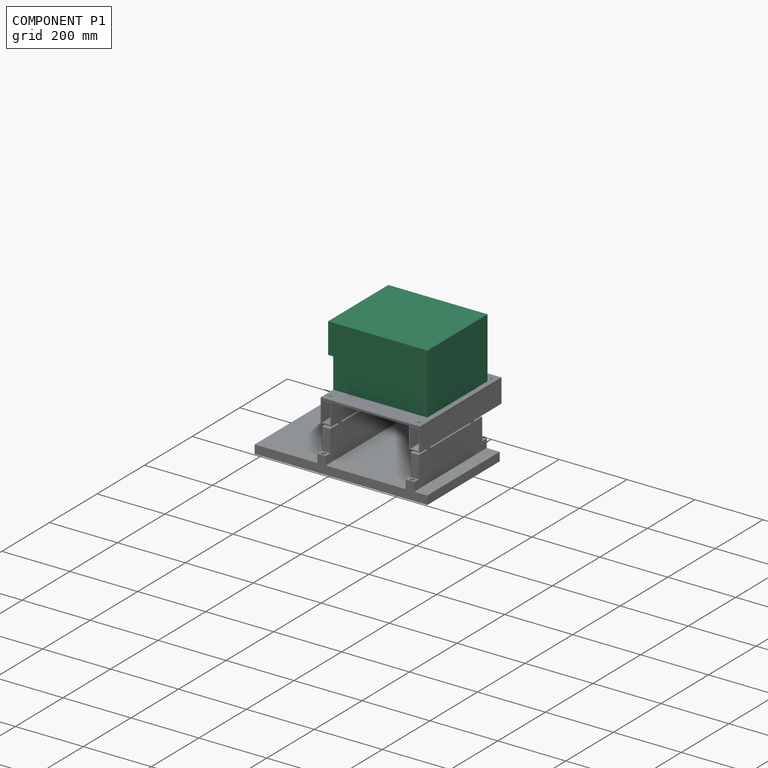
[diagram: component P1 — assembled]
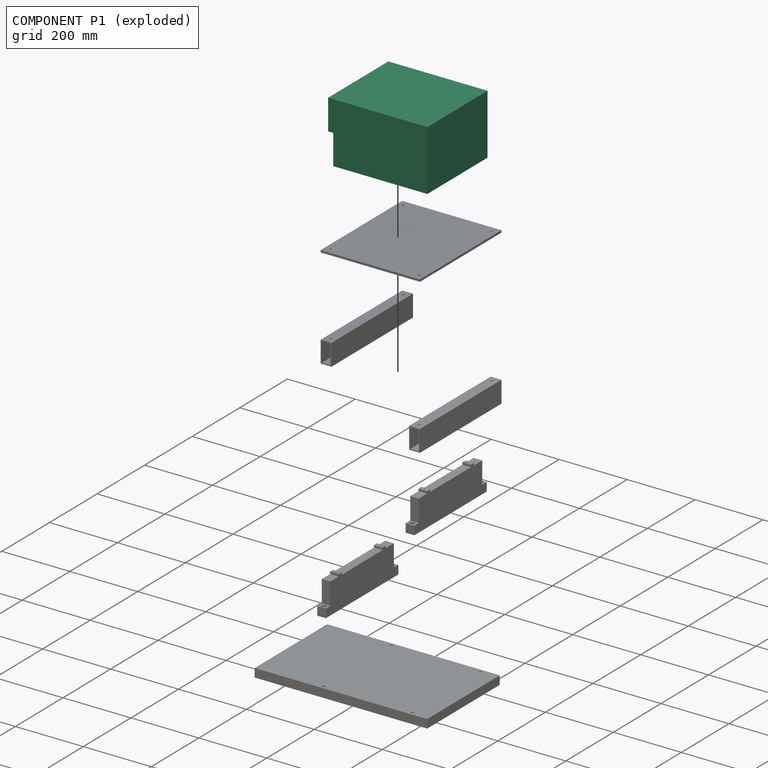
[diagram: component P1 — exploded]
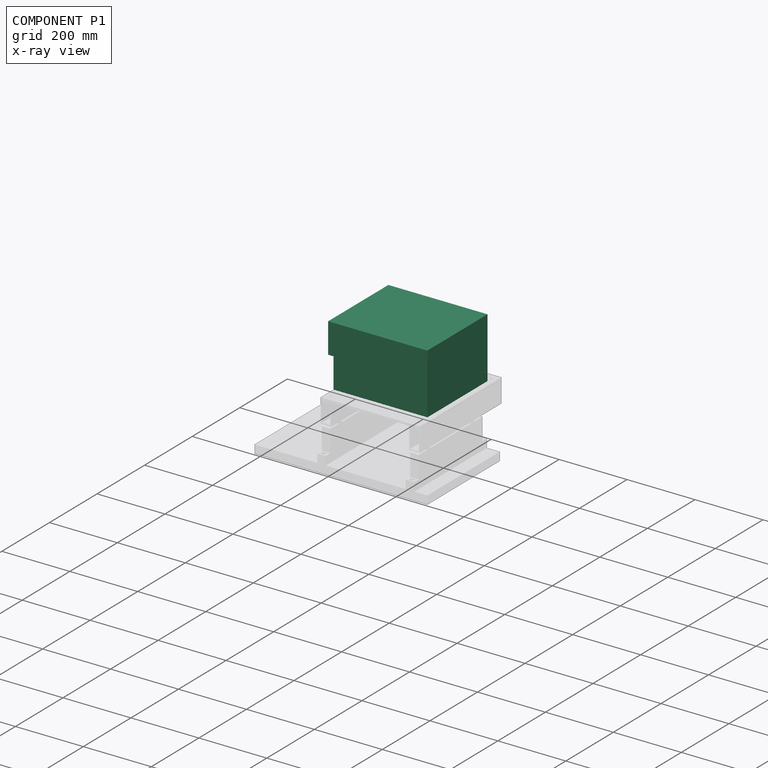
[diagram: component P1 — x-ray view]
COMPONENT P1 — recipe-attached (CADFS 00154369, mesh-verified: the recipe's output STEP matches this component's geometry to below the mesh-comparison resolution (tessellation chordal tolerance ~0.638 mm)).
Held by: CYLINDRICAL mate "Cylindrical 11" to P3; PLANAR mate "Planar 6" to P3; CYLINDRICAL mate "Cylindrical 9" to P3.
Construction recipe (FeatureScript — the CAD program that rebuilds this solid; sketch coordinates are in the units given by the * unit suffixes, e.g. mm):

FeatureScript 1511;
import(path : "onshape/std/geometry.fs", version : "1511.0");
import(path : "onshape/std/common.fs", version : "1511.0");
const mm = millimeter;
const VERTEX = EntityType.VERTEX;
const EDGE = EntityType.EDGE;
const FACE = EntityType.FACE;
const BODY = EntityType.BODY;
function v(x, y){return vector(x, y);}
function OD(order){return orderDisambiguation(order);}
function OSD(set){return originalSetDisambiguation(set);}
function TD(topology){return topologyDisambiguation(topology);}
function TDD(query){return trueDependencyDisambiguation(query);}
function sQuery(a, b, c) {return sketchEntityQuery(a, b, c);}

annotation { "Feature Type Name" : "Feature", "Feature Type Description" : "" }
export const myFeature = defineFeature(function(context is Context, id is Id, definition is map)
    precondition{}
    {
        {
            var Q0;
            Q0=qCreatedBy(makeId("Top.planeOp"),FACE);
            var sketch = newSketch(context, id + "F0", { "sketchPlane" : qUnion([Q0])});
            skLineSegment(sketch, "E0.bottom", {"start": v(-126.5, -138.5) * mm, "end": v(126.5, -138.5) * mm});
            skLineSegment(sketch, "E0.top", {"start": v(-126.5, 138.5) * mm, "end": v(126.5, 138.5) * mm});
            skLineSegment(sketch, "E0.left", {"start": v(-126.5, -138.5) * mm, "end": v(-126.5, 138.5) * mm});
            skLineSegment(sketch, "E0.right", {"start": v(126.5, -138.5) * mm, "end": v(126.5, 138.5) * mm});
            skLineSegment(sketch, "E1", {"start": v(-126.5, -138.5) * mm, "end": v(126.5, 138.5) * mm, "construction": true});
            skSolve(sketch);
        }
        {
            var Q0;
            Q0=makeQuery(id+"F0.imprint","IMPRINT",FACE,{"disambiguationData":[TD([[makeQuery(id+"F0.imprint","IMPRINT",EDGE,{"derivedFrom":sQuery(id+"F0.wireOp",EDGE,"E0.bottom")}),1.0]])]});
            extrude(context, id + "F1", {"entities" : qUnion([Q0]), "depth" : 178 * mm});
        }
        {
            var Q0;
            Q0=makeQuery(id+"F1.opExtrude","SWEPT_FACE",FACE,{"disambiguationData":[OSD([sQuery(id+"F0.wireOp",EDGE,"E0.bottom")])]});
            var sketch = newSketch(context, id + "F2", { "sketchPlane" : qUnion([Q0])});
            skLineSegment(sketch, "E2", {"start": v(46, 178) * mm, "end": v(46, 0) * mm, "construction": true});
            skLineSegment(sketch, "E3", {"start": v(126.5, 88.5) * mm, "end": v(-126.5, 88.5) * mm, "construction": true});
            skCircle(sketch, "E4", {"center": v(46, 88.5) * mm, "radius": 37.5 * mm});
            skLineSegment(sketch, "E5.bottom", {"start": v(-124, 175.5) * mm, "end": v(124, 175.5) * mm});
            skLineSegment(sketch, "E5.top", {"start": v(-124, 2.5) * mm, "end": v(124, 2.5) * mm});
            skLineSegment(sketch, "E5.left", {"start": v(-124, 175.5) * mm, "end": v(-124, 2.5) * mm});
            skLineSegment(sketch, "E5.right", {"start": v(124, 175.5) * mm, "end": v(124, 2.5) * mm});
            skSolve(sketch);
        }
        {
            var Q0;
            Q0=makeQuery(id+"F2.imprint","IMPRINT",FACE,{"disambiguationData":[TD([[makeQuery(id+"F2.imprint","IMPRINT",EDGE,{"derivedFrom":sQuery(id+"F2.wireOp",EDGE,"E4")}),-1.0]])]});
            extrude(context, id + "F3", {"entities" : qUnion([Q0]), "operationType" : NewBodyOperationType.REMOVE, "oppositeDirection" : true, "depth" : 5 * mm});
        }
        {
            var Q0;
            {var subQ1=sQuery(id+"F0.wireOp",EDGE,"E0.left");var subQ3=sQuery(id+"F0.wireOp",EDGE,"E0.bottom");Q0=makeQuery(id+"F3.boolean.opBoolean","SPLIT",FACE,{"disambiguationData":[TD([makeQuery(id+"F1.opExtrude","SWEPT_FACE",FACE,{"disambiguationData":[OSD([subQ1])]})])],"derivedFrom":makeQuery(id+"F1.opExtrude","SWEPT_FACE",FACE,{"disambiguationData":[OSD([subQ3])]})});}
            var sketch = newSketch(context, id + "F4", { "sketchPlane" : qUnion([Q0])});
            skLineSegment(sketch, "E6", {"start": v(-126.5, 88.5) * mm, "end": v(-124, 88.5) * mm});
            skLineSegment(sketch, "E7", {"start": v(124, 88.5) * mm, "end": v(126.5, 88.5) * mm});
            skSolve(sketch);
        }
        {
            var Q0;
            {var subQ4=sQuery(id+"F4.wireOp",EDGE,"E6");Q0=makeQuery(id+"F4.imprint","IMPRINT",FACE,{"disambiguationData":[TD([[makeQuery(id+"F4.imprint","IMPRINT",EDGE,{"derivedFrom":subQ4}),1.0]])]});}
            extrude(context, id + "F5", {"entities" : qUnion([Q0]), "operationType" : NewBodyOperationType.ADD, "depth" : 15 * mm});
        }
        {
            var Q0;
            Q0=makeQuery(id+"F3.boolean.opBoolean","SPLIT",FACE,{"disambiguationData":[TD([makeQuery(id+"F3.opExtrude","SWEPT_FACE",FACE,{"disambiguationData":[OSD([sQuery(id+"F2.wireOp",EDGE,"E4")])]})])],"derivedFrom":makeQuery(id+"F1.opExtrude","SWEPT_FACE",FACE,{"disambiguationData":[OSD([sQuery(id+"F0.wireOp",EDGE,"E0.bottom")])]})});
            extrude(context, id + "F6", {"entities" : qUnion([Q0]), "operationType" : NewBodyOperationType.REMOVE, "oppositeDirection" : true, "depth" : 10 * mm});
        }
        {
            var Q0;
            Q0=makeQuery(id+"F6.boolean.opBoolean","COPY",FACE,{"derivedFrom":makeQuery(id+"F6.opExtrude","CAP_FACE",FACE,{"disambiguationData":[OSD([sQuery(id+"F0.wireOp",EDGE,"E0.bottom")])],"isStart":false})});
            var sketch = newSketch(context, id + "F7", { "sketchPlane" : qUnion([Q0])});
            skCircle(sketch, "E8", {"center": v(46, 88.5) * mm, "radius": 18.5 * mm});
            skSolve(sketch);
        }
        {
            var Q0;
            Q0=makeQuery(id+"F7.imprint","IMPRINT",FACE,{"disambiguationData":[TD([[makeQuery(id+"F7.imprint","IMPRINT",EDGE,{"derivedFrom":sQuery(id+"F7.wireOp",EDGE,"E8")}),1.0]])]});
            extrude(context, id + "F8", {"entities" : qUnion([Q0]), "operationType" : NewBodyOperationType.REMOVE, "oppositeDirection" : true, "depth" : 257 * mm});
        }
        {
            var Q0;
            Q0=makeQuery(id+"F1.opExtrude","CAP_FACE",FACE,{"disambiguationData":[OSD([sQuery(id+"F0.wireOp",EDGE,"E0.bottom"),sQuery(id+"F0.wireOp",EDGE,"E0.top"),sQuery(id+"F0.wireOp",EDGE,"E0.left"),sQuery(id+"F0.wireOp",EDGE,"E0.right")])],"isStart":true});
            var sketch = newSketch(context, id + "F9", { "sketchPlane" : qUnion([Q0])});
            skLineSegment(sketch, "E9", {"start": v(0, 138.5) * mm, "end": v(0, -138.5) * mm, "construction": true});
            skLineSegment(sketch, "E10", {"start": v(-96, 138.5) * mm, "end": v(-96, -138.5) * mm, "construction": true});
            skLineSegment(sketch, "E11", {"start": v(96, 138.5) * mm, "end": v(96, -138.5) * mm, "construction": true});
            skLineSegment(sketch, "E12", {"start": v(-126.5, -109) * mm, "end": v(126.5, -109) * mm, "construction": true});
            skLineSegment(sketch, "E13", {"start": v(-126.5, 109.01) * mm, "end": v(126.5, 109.01) * mm, "construction": true});
            skCircle(sketch, "E14", {"center": v(-96, -109) * mm, "radius": 2.2 * mm});
            skCircle(sketch, "E15", {"center": v(96, -109) * mm, "radius": 2.2 * mm});
            skCircle(sketch, "E16", {"center": v(96, 109.01) * mm, "radius": 2.2 * mm});
            skCircle(sketch, "E17", {"center": v(-96, 109.01) * mm, "radius": 2.2 * mm});
            skSolve(sketch);
        }
        {
            var Q0;
            Q0=makeQuery(id+"F9.imprint","IMPRINT",FACE,{"disambiguationData":[TD([[makeQuery(id+"F9.imprint","IMPRINT",EDGE,{"derivedFrom":sQuery(id+"F9.wireOp",EDGE,"E17")}),1.0]])]});
            var Q1;
            Q1=makeQuery(id+"F9.imprint","IMPRINT",FACE,{"disambiguationData":[TD([[makeQuery(id+"F9.imprint","IMPRINT",EDGE,{"derivedFrom":sQuery(id+"F9.wireOp",EDGE,"E16")}),1.0]])]});
            var Q2;
            Q2=makeQuery(id+"F9.imprint","IMPRINT",FACE,{"disambiguationData":[TD([[makeQuery(id+"F9.imprint","IMPRINT",EDGE,{"derivedFrom":sQuery(id+"F9.wireOp",EDGE,"E14")}),1.0]])]});
            var Q3;
            Q3=makeQuery(id+"F9.imprint","IMPRINT",FACE,{"disambiguationData":[TD([[makeQuery(id+"F9.imprint","IMPRINT",EDGE,{"derivedFrom":sQuery(id+"F9.wireOp",EDGE,"E15")}),1.0]])]});
            extrude(context, id + "F10", {"entities" : qUnion([Q0, Q1, Q2, Q3]), "operationType" : NewBodyOperationType.REMOVE, "oppositeDirection" : true, "depth" : 5 * mm});
        }
    });
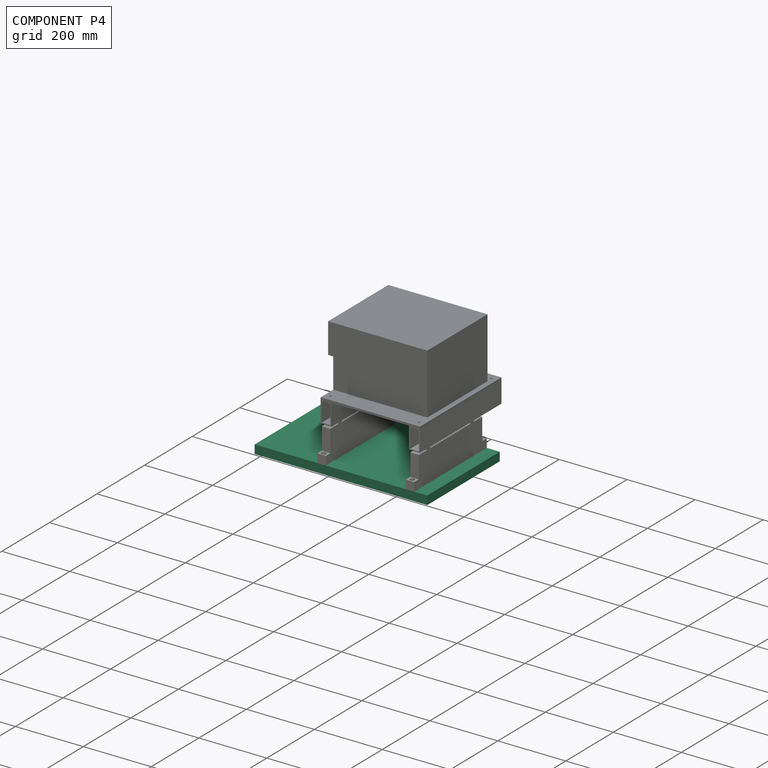
[diagram: component P4 — assembled]
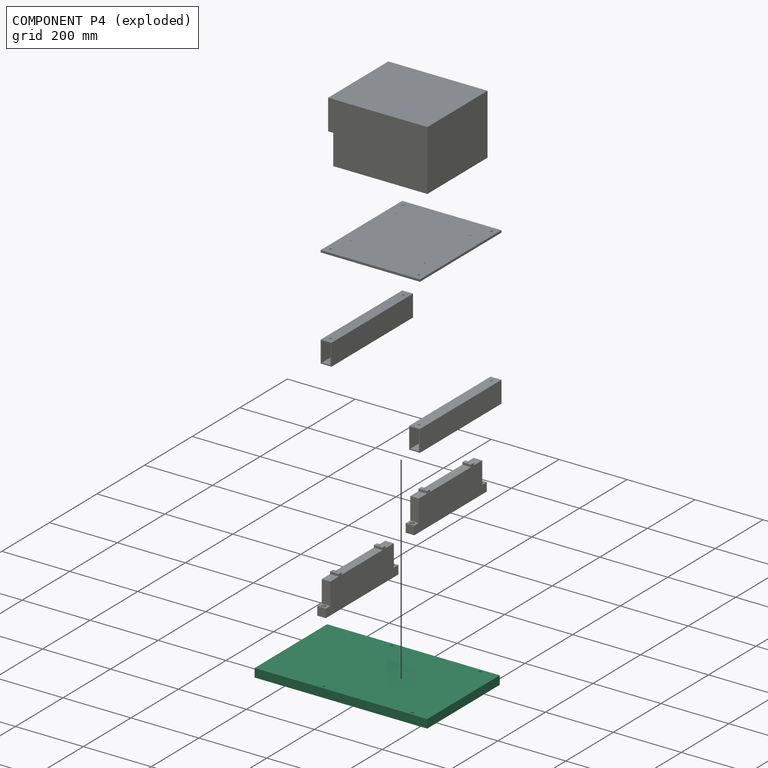
[diagram: component P4 — exploded]
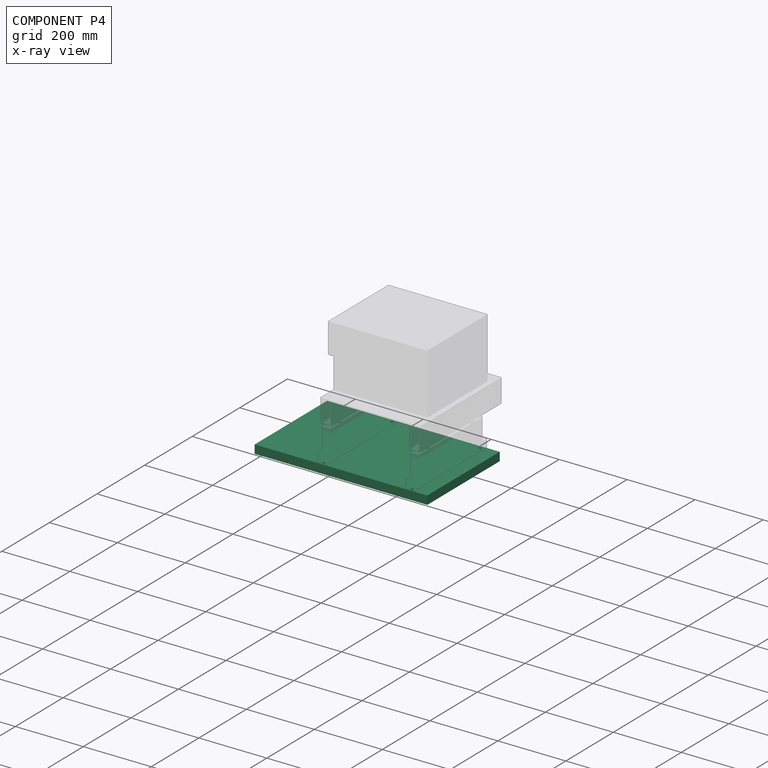
[diagram: component P4 — x-ray view]
COMPONENT P4 — recipe-attached (CADFS 00154449, mesh-verified: the recipe's output STEP matches this component's geometry to below the mesh-comparison resolution (tessellation chordal tolerance ~0.889 mm)).
Held by: CYLINDRICAL mate "Cylindrical 4" to P2; CYLINDRICAL mate "Cylindrical 3" to P2; CYLINDRICAL mate "Cylindrical 1" to P0; PLANAR mate "Planar 1" to P0; PLANAR mate "Planar 2" to P2; CYLINDRICAL mate "Cylindrical 2" to P0.
Construction recipe (FeatureScript — the CAD program that rebuilds this solid; sketch coordinates are in the units given by the * unit suffixes, e.g. mm):

FeatureScript 1511;
import(path : "onshape/std/geometry.fs", version : "1511.0");
import(path : "onshape/std/common.fs", version : "1511.0");
const mm = millimeter;
const VERTEX = EntityType.VERTEX;
const EDGE = EntityType.EDGE;
const FACE = EntityType.FACE;
const BODY = EntityType.BODY;
function v(x, y){return vector(x, y);}
function OD(order){return orderDisambiguation(order);}
function OSD(set){return originalSetDisambiguation(set);}
function TD(topology){return topologyDisambiguation(topology);}
function TDD(query){return trueDependencyDisambiguation(query);}
function sQuery(a, b, c) {return sketchEntityQuery(a, b, c);}

annotation { "Feature Type Name" : "Feature", "Feature Type Description" : "" }
export const myFeature = defineFeature(function(context is Context, id is Id, definition is map)
    precondition{}
    {
        {
            var Q0;
            Q0=qCreatedBy(makeId("Top.planeOp"),FACE);
            var sketch = newSketch(context, id + "F0", { "sketchPlane" : qUnion([Q0])});
            skLineSegment(sketch, "E0.bottom", {"start": v(-254, 152.4) * mm, "end": v(254, 152.4) * mm});
            skLineSegment(sketch, "E0.top", {"start": v(-254, -152.4) * mm, "end": v(254, -152.4) * mm});
            skLineSegment(sketch, "E0.left", {"start": v(-254, 152.4) * mm, "end": v(-254, -152.4) * mm});
            skLineSegment(sketch, "E0.right", {"start": v(254, 152.4) * mm, "end": v(254, -152.4) * mm});
            skLineSegment(sketch, "E1", {"start": v(-254, 152.4) * mm, "end": v(254, -152.4) * mm, "construction": true});
            skSolve(sketch);
        }
        {
            var Q0;
            Q0=makeQuery(id+"F0.imprint","IMPRINT",FACE,{"disambiguationData":[TD([[makeQuery(id+"F0.imprint","IMPRINT",EDGE,{"derivedFrom":sQuery(id+"F0.wireOp",EDGE,"E0.bottom")}),-1.0]])]});
            extrude(context, id + "F1", {"entities" : qUnion([Q0]), "depth" : 25.4 * mm});
        }
        {
            var Q0;
            Q0=makeQuery(id+"F1.opExtrude","CAP_FACE",FACE,{"disambiguationData":[OSD([sQuery(id+"F0.wireOp",EDGE,"E0.bottom"),sQuery(id+"F0.wireOp",EDGE,"E0.top"),sQuery(id+"F0.wireOp",EDGE,"E0.left"),sQuery(id+"F0.wireOp",EDGE,"E0.right")])],"isStart":true});
            var sketch = newSketch(context, id + "F2", { "sketchPlane" : qUnion([Q0])});
            skLineSegment(sketch, "E2", {"start": v(203.2, 152.4) * mm, "end": v(203.2, -152.4) * mm, "construction": true});
            skLineSegment(sketch, "E3", {"start": v(-57.15, 152.4) * mm, "end": v(-57.15, -152.4) * mm, "construction": true});
            skLineSegment(sketch, "E4", {"start": v(-275.83, 0) * mm, "end": v(283.64, 0) * mm, "construction": true});
            skPoint(sketch, "E4.startSnap0", {"position": v(-254, 0) * mm});
            skPoint(sketch, "E4.endSnap0", {"position": v(254, 0) * mm});
            skLineSegment(sketch, "E5", {"start": v(-254, 142.87) * mm, "end": v(254, 142.87) * mm, "construction": true});
            skLineSegment(sketch, "E6", {"start": v(-254, -142.88) * mm, "end": v(254, -142.88) * mm, "construction": true});
            skCircle(sketch, "E7", {"center": v(-57.15, 142.87) * mm, "radius": 4.06 * mm});
            skCircle(sketch, "E8", {"center": v(203.2, 142.87) * mm, "radius": 4.06 * mm});
            skCircle(sketch, "E9", {"center": v(203.2, -142.88) * mm, "radius": 4.06 * mm});
            skCircle(sketch, "E10", {"center": v(-57.15, -142.88) * mm, "radius": 4.06 * mm});
            skSolve(sketch);
        }
        {
            var Q0;
            Q0=makeQuery(id+"F2.imprint","IMPRINT",FACE,{"disambiguationData":[TD([[makeQuery(id+"F2.imprint","IMPRINT",EDGE,{"derivedFrom":sQuery(id+"F2.wireOp",EDGE,"E7")}),1.0]])]});
            var Q1;
            Q1=makeQuery(id+"F2.imprint","IMPRINT",FACE,{"disambiguationData":[TD([[makeQuery(id+"F2.imprint","IMPRINT",EDGE,{"derivedFrom":sQuery(id+"F2.wireOp",EDGE,"E8")}),1.0]])]});
            var Q2;
            Q2=makeQuery(id+"F2.imprint","IMPRINT",FACE,{"disambiguationData":[TD([[makeQuery(id+"F2.imprint","IMPRINT",EDGE,{"derivedFrom":sQuery(id+"F2.wireOp",EDGE,"E9")}),1.0]])]});
            var Q3;
            Q3=makeQuery(id+"F2.imprint","IMPRINT",FACE,{"disambiguationData":[TD([[makeQuery(id+"F2.imprint","IMPRINT",EDGE,{"derivedFrom":sQuery(id+"F2.wireOp",EDGE,"E10")}),1.0]])]});
            extrude(context, id + "F3", {"entities" : qUnion([Q0, Q1, Q2, Q3]), "operationType" : NewBodyOperationType.REMOVE, "endBound" : BoundingType.THROUGH_ALL, "oppositeDirection" : true, "depth" : 25.4 * mm});
        }
    });
PROVENANCE & LICENSES
Assembly (occurrences, transforms, mates, per-part STEP geometry): AutoMate dataset, Zenodo record 7776208, CC0.
Construction recipes: CADFS (HuggingFace VladPyatov/CADFS, CC-BY-4.0, layered over the ABC dataset), FeatureScript reconstruction programs keyed by ABC model id.
Join: ABC meta listings map ABC model id -> Onshape documentId; within a shared document, parts are matched by geometric signature (bounding-box dims + volume at 0.1% relative tolerance, exact B-rep face/solid counts).
Verification: 7 of this assembly's 7 components carry a recipe attachment, and every attachment is mesh-verified: the CADFS STEP and the AutoMate member STEP were compared as meshes in their shared local frame (symmetric sampled-point-to-mesh distance); worst across the 7 attachments: below the mesh-comparison resolution (tessellation chordal tolerance ~0.889 mm) on a 593 mm part.
Renders: orthographic iso camera (az 35 / el 25); the floor grid conveys scale (grid pitch printed in each image; no ruler). In the exploded view each component is displaced by its stored offset vector: the offsets alone carry the explosion direction (mate normal/axis signs are not orientation cues and do not encode it), and separation distances are assigned per mate-chain, not proportionally to assembly-order depth.
